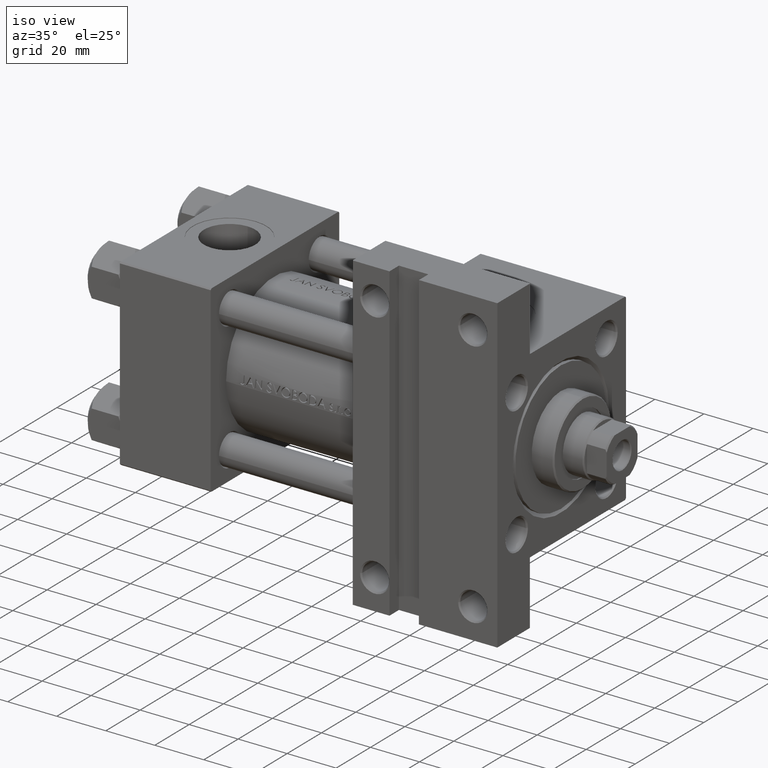
[diagram: clean part render]
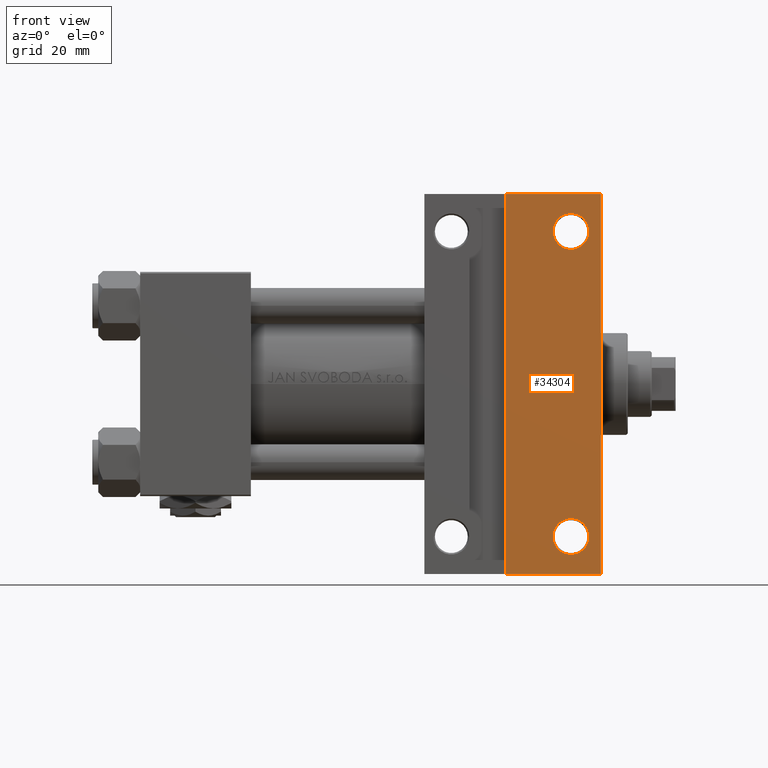
[diagram: tour spotlight — one face highlighted and labeled with its STEP entity id]
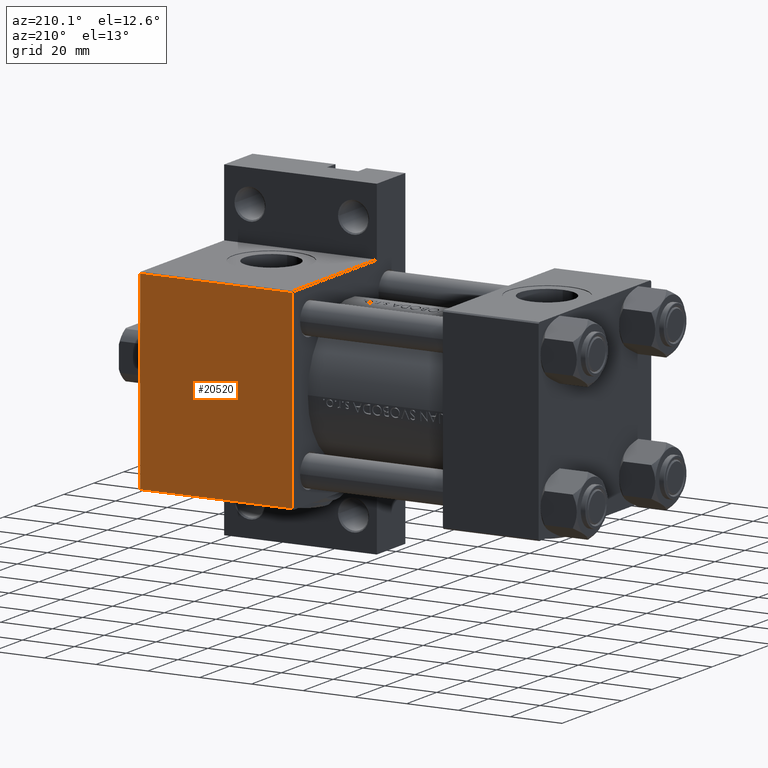
[diagram: tour spotlight — one face highlighted and labeled with its STEP entity id]
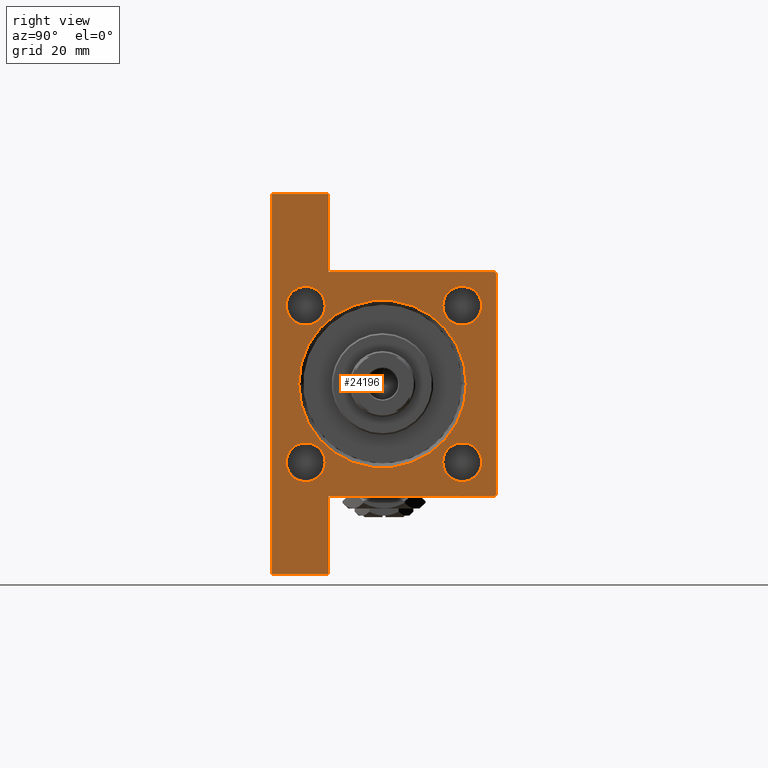
[diagram: tour spotlight — one face highlighted and labeled with its STEP entity id]
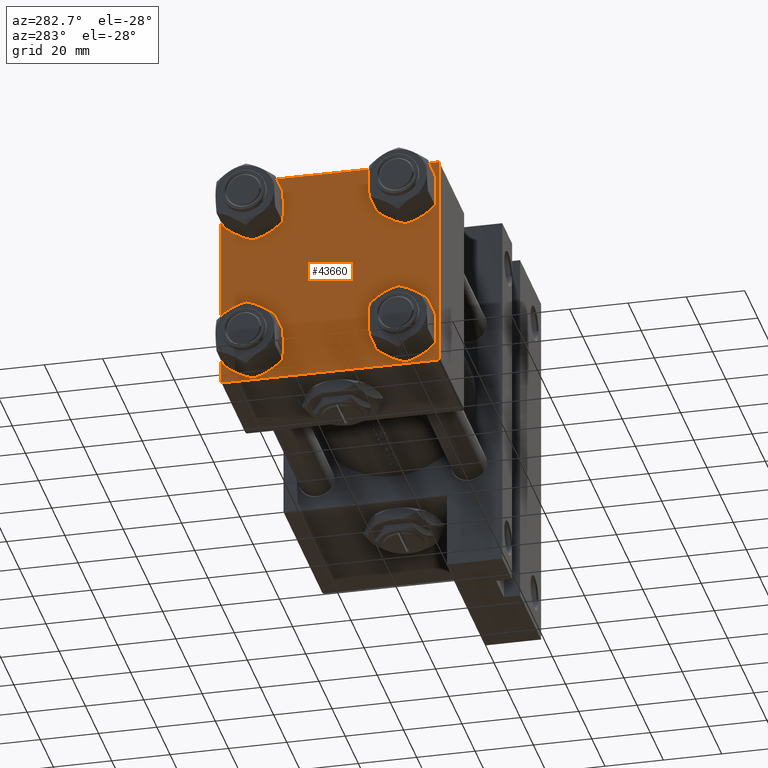
[diagram: tour spotlight — one face highlighted and labeled with its STEP entity id]
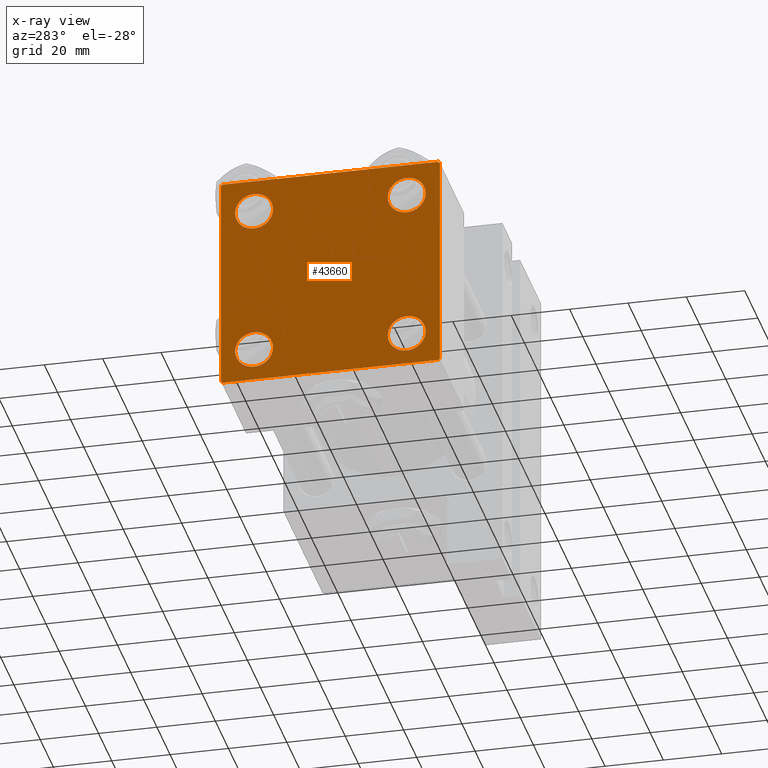
[diagram: x-ray of the same camera — body ghosted, this tour face saturated]
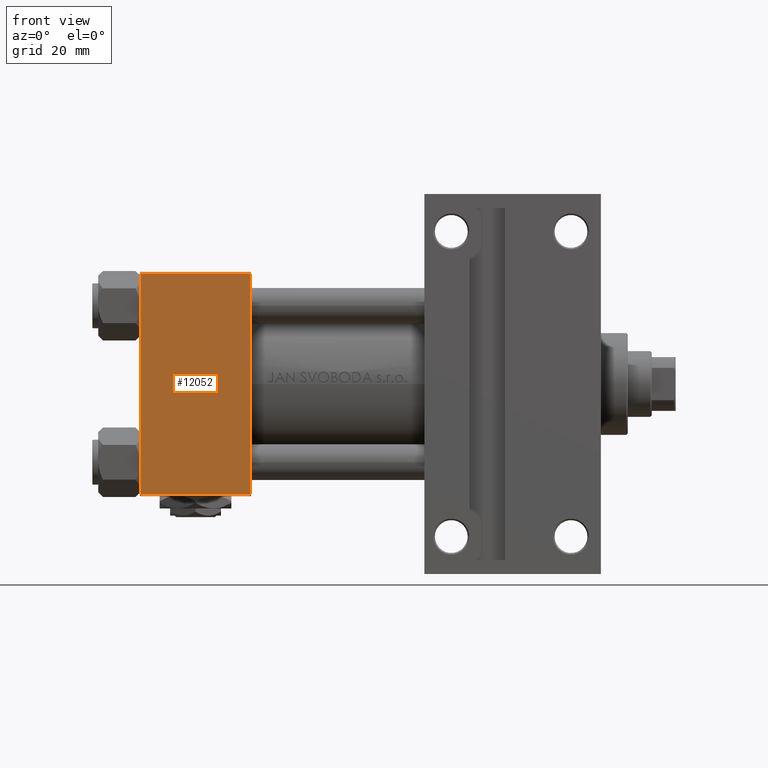
[diagram: tour spotlight — one face highlighted and labeled with its STEP entity id]
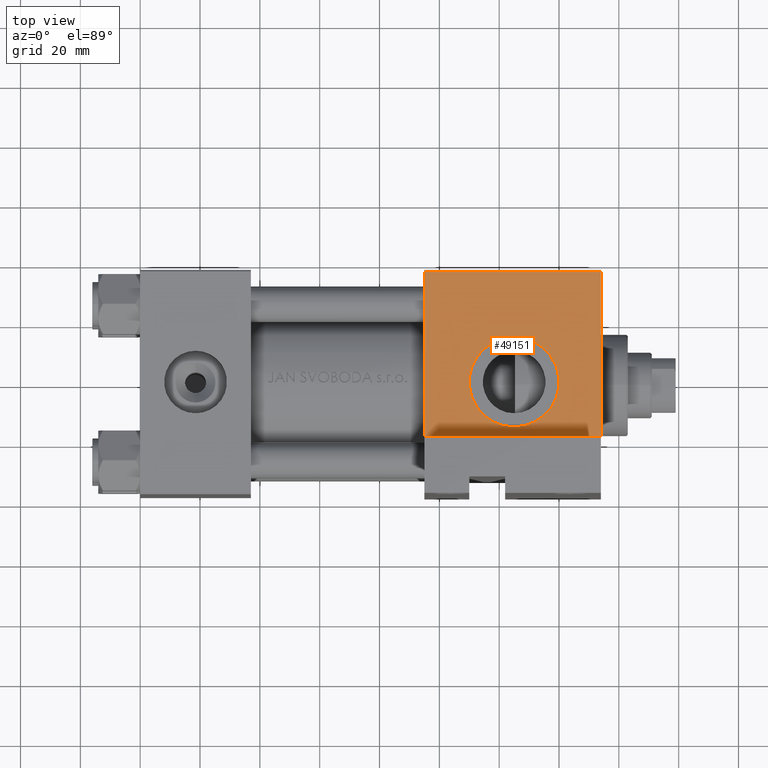
[diagram: tour spotlight — one face highlighted and labeled with its STEP entity id]
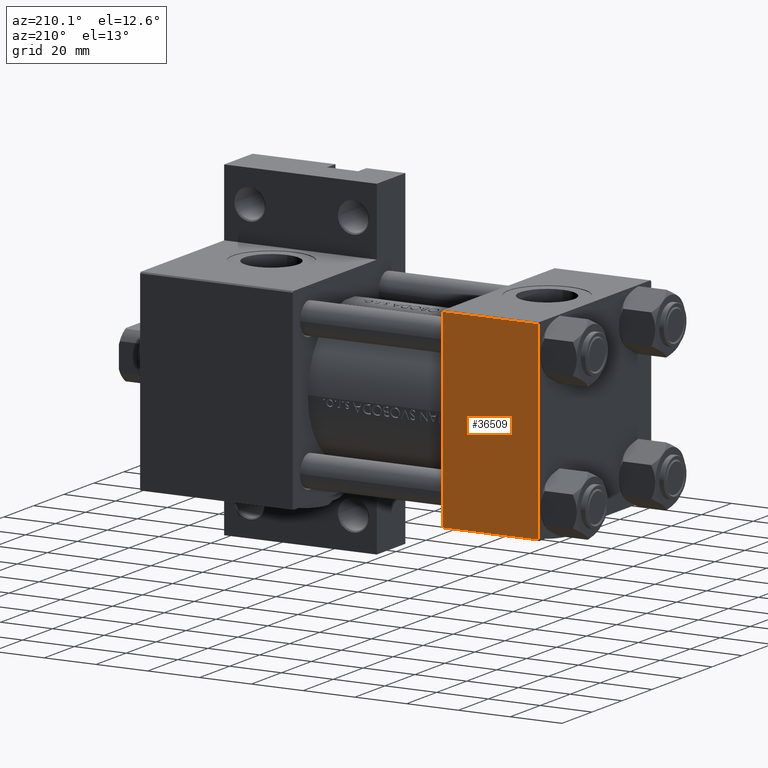
[diagram: tour spotlight — one face highlighted and labeled with its STEP entity id]
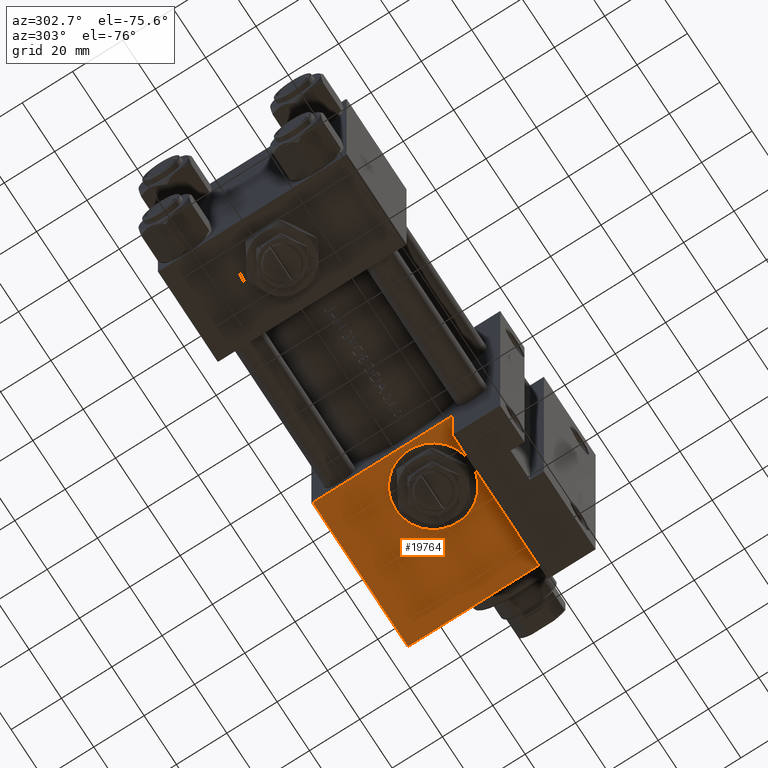
[diagram: tour spotlight — one face highlighted and labeled with its STEP entity id]
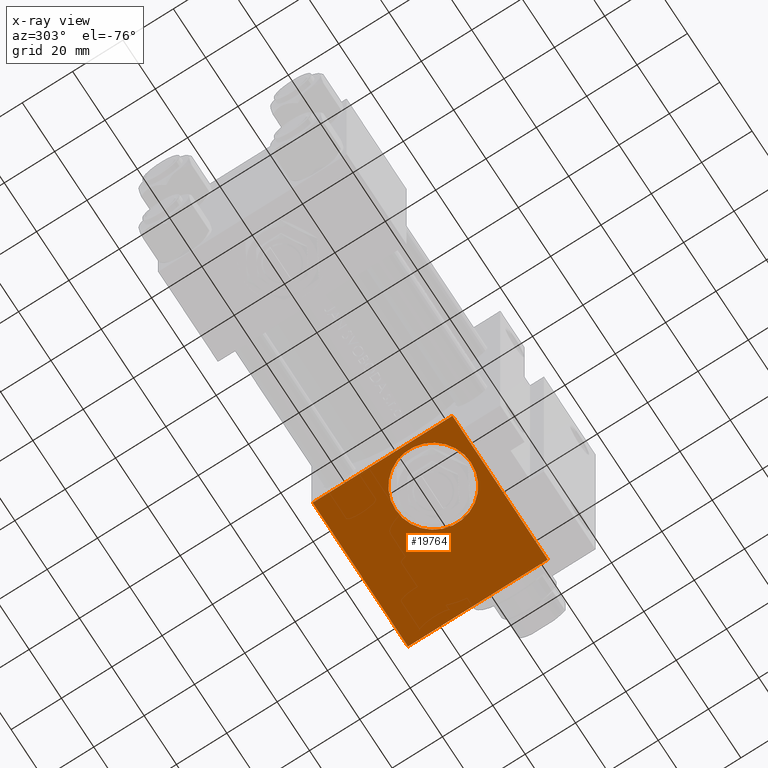
[diagram: x-ray of the same camera — body ghosted, this tour face saturated]
A machine part: a face-by-face anatomy tour. The part has 1199 B-rep faces; the first image is the clean iso view, then the 8 largest visible faces are spotlighted one at a time (largest first), each with its STEP entity span.

Face 1 — front view, entity #34304. In plain terms, the highlighted planar face has unit normal (0, -1, 0).
Definition (entity closure, byte-faithful):
#1232 = DIRECTION ( 'NONE',  ( -1.000000000000000000, 0.000000000000000000, 0.000000000000000000 ) ) ;
#1721 = DIRECTION ( 'NONE',  ( -0.000000000000000000, -0.000000000000000000, 1.000000000000000000 ) ) ;
#2720 = EDGE_CURVE ( 'NONE', #21198, #38297, #15262, .T. ) ;
#5327 = DIRECTION ( 'NONE',  ( -1.000000000000000000, 0.000000000000000000, 0.000000000000000000 ) ) ;
#7537 = LINE ( 'NONE', #30883, #21949 ) ;
#7682 = ORIENTED_EDGE ( 'NONE', *, *, #46597, .T. ) ;
#8260 = ORIENTED_EDGE ( 'NONE', *, *, #2720, .F. ) ;
#9049 = EDGE_LOOP ( 'NONE', ( #8260, #37685, #42379, #9970 ) ) ;
#9130 = ORIENTED_EDGE ( 'NONE', *, *, #37734, .T. ) ;
#9553 = CARTESIAN_POINT ( 'NONE',  ( 95.00000000000000000, 63.50000000000000000, -37.50000000000000000 ) ) ;
#9970 = ORIENTED_EDGE ( 'NONE', *, *, #46447, .T. ) ;
#10718 = CIRCLE ( 'NONE', #17172, 5.999499999999990507 ) ;
#11395 = CARTESIAN_POINT ( 'NONE',  ( 154.0000000000000000, 37.50000000000000000, -37.50000000000000000 ) ) ;
#12468 = EDGE_LOOP ( 'NONE', ( #9130, #21013 ) ) ;
#12498 = DIRECTION ( 'NONE',  ( -0.000000000000000000, -0.000000000000000000, 1.000000000000000000 ) ) ;
#12616 = DIRECTION ( 'NONE',  ( -0.000000000000000000, -0.000000000000000000, 1.000000000000000000 ) ) ;
#15262 = LINE ( 'NONE', #30569, #43435 ) ;
#15636 = EDGE_CURVE ( 'NONE', #44143, #32350, #18373, .T. ) ;
#16070 = CARTESIAN_POINT ( 'NONE',  ( 143.9999999999999716, -51.00000000000000000, -37.50000000000000000 ) ) ;
#16514 = DIRECTION ( 'NONE',  ( -1.000000000000000000, 0.000000000000000000, 0.000000000000000000 ) ) ;
#17172 = AXIS2_PLACEMENT_3D ( 'NONE', #47512, #12616, #5327 ) ;
#18373 = LINE ( 'NONE', #33672, #41583 ) ;
#19929 = CARTESIAN_POINT ( 'NONE',  ( 122.0000000000000000, 63.50000000000000000, -37.50000000000000000 ) ) ;
#21013 = ORIENTED_EDGE ( 'NONE', *, *, #43030, .T. ) ;
#21075 = AXIS2_PLACEMENT_3D ( 'NONE', #35607, #12498, #16514 ) ;
#21198 = VERTEX_POINT ( 'NONE', #19929 ) ;
#21589 = ORIENTED_EDGE ( 'NONE', *, *, #47303, .T. ) ;
#21949 = VECTOR ( 'NONE', #45696, 1000.000000000000000 ) ;
#23797 = CARTESIAN_POINT ( 'NONE',  ( 154.0000000000000000, 63.50000000000000000, -37.50000000000000000 ) ) ;
#24082 = DIRECTION ( 'NONE',  ( -0.000000000000000000, -0.000000000000000000, 1.000000000000000000 ) ) ;
#24619 = VERTEX_POINT ( 'NONE', #45909 ) ;
#24858 = DIRECTION ( 'NONE',  ( 1.000000000000000000, 0.000000000000000000, 0.000000000000000000 ) ) ;
#25120 = VERTEX_POINT ( 'NONE', #34815 ) ;
#26140 = DIRECTION ( 'NONE',  ( 0.000000000000000000, -1.000000000000000000, 0.000000000000000000 ) ) ;
#27670 = CARTESIAN_POINT ( 'NONE',  ( 153.9999999999999716, -63.50000000000002842, -37.50000000000000000 ) ) ;
#28943 = EDGE_CURVE ( 'NONE', #21198, #44143, #43962, .T. ) ;
#29804 = EDGE_LOOP ( 'NONE', ( #7682, #21589 ) ) ;
#30481 = DIRECTION ( 'NONE',  ( 0.000000000000000000, 0.000000000000000000, -1.000000000000000000 ) ) ;
#30569 = CARTESIAN_POINT ( 'NONE',  ( 122.0000000000000000, -63.50000000000000000, -37.50000000000000000 ) ) ;
#30883 = CARTESIAN_POINT ( 'NONE',  ( 94.99999999999998579, -63.50000000000000000, -37.50000000000000000 ) ) ;
#31371 = DIRECTION ( 'NONE',  ( -1.000000000000000000, 0.000000000000000000, 0.000000000000000000 ) ) ;
#31621 = CARTESIAN_POINT ( 'NONE',  ( 143.9999999999999716, 51.00000000000000000, -37.50000000000000000 ) ) ;
#32350 = VERTEX_POINT ( 'NONE', #27670 ) ;
#33267 = CIRCLE ( 'NONE', #38095, 5.999499999999990507 ) ;
#33672 = CARTESIAN_POINT ( 'NONE',  ( 154.0000000000000000, 37.50000000000000000, -37.50000000000000000 ) ) ;
#33994 = FACE_BOUND ( 'NONE', #29804, .T. ) ;
#34242 = FACE_BOUND ( 'NONE', #12468, .T. ) ;
#34304 = ADVANCED_FACE ( 'NONE', ( #45549, #33994, #34242 ), #45796, .T. ) ;
#34680 = CIRCLE ( 'NONE', #21075, 5.999499999999990507 ) ;
#34815 = CARTESIAN_POINT ( 'NONE',  ( 138.0004999999999598, -51.00000000000000000, -37.50000000000000000 ) ) ;
#35548 = CARTESIAN_POINT ( 'NONE',  ( 149.9994999999999550, 51.00000000000000000, -37.50000000000000000 ) ) ;
#35607 = CARTESIAN_POINT ( 'NONE',  ( 143.9999999999999716, 51.00000000000000000, -37.50000000000000000 ) ) ;
#37685 = ORIENTED_EDGE ( 'NONE', *, *, #28943, .T. ) ;
#37734 = EDGE_CURVE ( 'NONE', #24619, #48142, #33267, .T. ) ;
#38095 = AXIS2_PLACEMENT_3D ( 'NONE', #31621, #1721, #1232 ) ;
#38297 = VERTEX_POINT ( 'NONE', #46131 ) ;
#38363 = DIRECTION ( 'NONE',  ( -0.000000000000000000, -1.000000000000000000, -0.000000000000000000 ) ) ;
#40336 = VECTOR ( 'NONE', #24858, 1000.000000000000000 ) ;
#40430 = AXIS2_PLACEMENT_3D ( 'NONE', #16070, #24082, #31371 ) ;
#41583 = VECTOR ( 'NONE', #26140, 1000.000000000000000 ) ;
#42379 = ORIENTED_EDGE ( 'NONE', *, *, #15636, .T. ) ;
#42824 = CIRCLE ( 'NONE', #40430, 5.999499999999990507 ) ;
#43030 = EDGE_CURVE ( 'NONE', #48142, #24619, #34680, .T. ) ;
#43435 = VECTOR ( 'NONE', #38363, 1000.000000000000000 ) ;
#43962 = LINE ( 'NONE', #9553, #40336 ) ;
#44143 = VERTEX_POINT ( 'NONE', #23797 ) ;
#44775 = CARTESIAN_POINT ( 'NONE',  ( 149.9994999999999550, -51.00000000000000000, -37.50000000000000000 ) ) ;
#45549 = FACE_OUTER_BOUND ( 'NONE', #9049, .T. ) ;
#45696 = DIRECTION ( 'NONE',  ( -1.000000000000000000, 4.704334850106596780E-16, -0.000000000000000000 ) ) ;
#45796 = PLANE ( 'NONE',  #47608 ) ;
#45909 = CARTESIAN_POINT ( 'NONE',  ( 138.0004999999999598, 51.00000000000000000, -37.50000000000000000 ) ) ;
#46131 = CARTESIAN_POINT ( 'NONE',  ( 122.0000000000000000, -63.50000000000000000, -37.50000000000000000 ) ) ;
#46447 = EDGE_CURVE ( 'NONE', #32350, #38297, #7537, .T. ) ;
#46597 = EDGE_CURVE ( 'NONE', #25120, #46987, #42824, .T. ) ;
#46987 = VERTEX_POINT ( 'NONE', #44775 ) ;
#47303 = EDGE_CURVE ( 'NONE', #46987, #25120, #10718, .T. ) ;
#47512 = CARTESIAN_POINT ( 'NONE',  ( 143.9999999999999716, -51.00000000000000000, -37.50000000000000000 ) ) ;
#47608 = AXIS2_PLACEMENT_3D ( 'NONE', #11395, #30481, #49580 ) ;
#48142 = VERTEX_POINT ( 'NONE', #35548 ) ;
#49580 = DIRECTION ( 'NONE',  ( -1.000000000000000000, 0.000000000000000000, -0.000000000000000000 ) ) ;

Face 2 — auxiliary view, entity #20520. In plain terms, the highlighted planar face has unit normal (0, -1, -0).
Definition (entity closure, byte-faithful):
#1191 = CARTESIAN_POINT ( 'NONE',  ( 95.00000000000000000, 37.00000000000000000, 37.49999999999999289 ) ) ;
#3087 = CARTESIAN_POINT ( 'NONE',  ( 154.0000000000000000, 37.00000000000000000, 37.49999999999999289 ) ) ;
#3998 = DIRECTION ( 'NONE',  ( 1.000000000000000000, 0.000000000000000000, 0.000000000000000000 ) ) ;
#4305 = EDGE_CURVE ( 'NONE', #8794, #20065, #30125, .T. ) ;
#7449 = CARTESIAN_POINT ( 'NONE',  ( 154.0000000000000000, 37.50000000000000000, 37.49999999999999289 ) ) ;
#8794 = VERTEX_POINT ( 'NONE', #20383 ) ;
#9645 = VECTOR ( 'NONE', #40026, 1000.000000000000000 ) ;
#11613 = CARTESIAN_POINT ( 'NONE',  ( 95.00000000000000000, 37.00000000000000000, 37.49999999999999289 ) ) ;
#11643 = ORIENTED_EDGE ( 'NONE', *, *, #4305, .T. ) ;
#12698 = ORIENTED_EDGE ( 'NONE', *, *, #41391, .T. ) ;
#16476 = EDGE_LOOP ( 'NONE', ( #28887, #12698, #26582, #11643 ) ) ;
#17661 = LINE ( 'NONE', #36976, #9645 ) ;
#20065 = VERTEX_POINT ( 'NONE', #39054 ) ;
#20239 = VERTEX_POINT ( 'NONE', #3087 ) ;
#20383 = CARTESIAN_POINT ( 'NONE',  ( 95.00000000000000000, -36.99999999999997158, 37.49999999999997868 ) ) ;
#20520 = ADVANCED_FACE ( 'NONE', ( #48015 ), #40484, .F. ) ;
#22285 = EDGE_CURVE ( 'NONE', #33196, #8794, #17661, .T. ) ;
#22760 = DIRECTION ( 'NONE',  ( 0.000000000000000000, -1.000000000000000000, -1.850371707708594316E-16 ) ) ;
#23323 = VECTOR ( 'NONE', #22760, 1000.000000000000000 ) ;
#23894 = VECTOR ( 'NONE', #3998, 1000.000000000000000 ) ;
#24660 = DIRECTION ( 'NONE',  ( 0.000000000000000000, 1.000000000000000000, 1.850371707708594316E-16 ) ) ;
#24807 = AXIS2_PLACEMENT_3D ( 'NONE', #47519, #28434, #24660 ) ;
#25150 = EDGE_CURVE ( 'NONE', #20239, #20065, #34056, .T. ) ;
#26582 = ORIENTED_EDGE ( 'NONE', *, *, #22285, .T. ) ;
#27099 = CARTESIAN_POINT ( 'NONE',  ( 154.0000000000000000, -36.99999999999997158, 37.49999999999997868 ) ) ;
#28434 = DIRECTION ( 'NONE',  ( 0.000000000000000000, 1.850371707708594316E-16, -1.000000000000000000 ) ) ;
#28887 = ORIENTED_EDGE ( 'NONE', *, *, #25150, .F. ) ;
#30125 = LINE ( 'NONE', #27099, #23894 ) ;
#33013 = VECTOR ( 'NONE', #45261, 1000.000000000000000 ) ;
#33196 = VERTEX_POINT ( 'NONE', #1191 ) ;
#34056 = LINE ( 'NONE', #7449, #23323 ) ;
#36976 = CARTESIAN_POINT ( 'NONE',  ( 95.00000000000000000, 37.50000000000000000, 37.49999999999999289 ) ) ;
#39054 = CARTESIAN_POINT ( 'NONE',  ( 154.0000000000000000, -36.99999999999997158, 37.49999999999997868 ) ) ;
#40026 = DIRECTION ( 'NONE',  ( 0.000000000000000000, -1.000000000000000000, -1.850371707708594316E-16 ) ) ;
#40484 = PLANE ( 'NONE',  #24807 ) ;
#41391 = EDGE_CURVE ( 'NONE', #20239, #33196, #46013, .T. ) ;
#45261 = DIRECTION ( 'NONE',  ( -1.000000000000000000, 0.000000000000000000, 0.000000000000000000 ) ) ;
#46013 = LINE ( 'NONE', #11613, #33013 ) ;
#47519 = CARTESIAN_POINT ( 'NONE',  ( 154.0000000000000000, 37.50000000000000000, 37.49999999999999289 ) ) ;
#48015 = FACE_OUTER_BOUND ( 'NONE', #16476, .T. ) ;

Face 3 — right view, entity #24196. In plain terms, the highlighted planar face has unit normal (-1, 0, 0).
Definition (entity closure, byte-faithful):
#529 = DIRECTION ( 'NONE',  ( 0.000000000000000000, 0.000000000000000000, -1.000000000000000000 ) ) ;
#730 = ORIENTED_EDGE ( 'NONE', *, *, #20282, .T. ) ;
#744 = CARTESIAN_POINT ( 'NONE',  ( 154.0000000000000000, -26.15000000000000213, -32.65000000000001279 ) ) ;
#943 = DIRECTION ( 'NONE',  ( -0.000000000000000000, -0.7071067811865672237, -0.7071067811865279218 ) ) ;
#1607 = DIRECTION ( 'NONE',  ( 0.000000000000000000, 0.000000000000000000, 1.000000000000000000 ) ) ;
#1619 = FACE_BOUND ( 'NONE', #43322, .T. ) ;
#2103 = DIRECTION ( 'NONE',  ( -1.000000000000000000, -0.000000000000000000, 0.000000000000000000 ) ) ;
#2181 = CARTESIAN_POINT ( 'NONE',  ( 154.0000000000000000, -37.50000000000000711, -18.50000000000000355 ) ) ;
#2215 = ORIENTED_EDGE ( 'NONE', *, *, #39722, .T. ) ;
#2303 = VERTEX_POINT ( 'NONE', #744 ) ;
#2337 = CARTESIAN_POINT ( 'NONE',  ( 154.0000000000000000, 26.14999999999999858, 26.15000000000000213 ) ) ;
#2784 = CARTESIAN_POINT ( 'NONE',  ( 154.0000000000000000, 26.14999999999999858, -26.15000000000000213 ) ) ;
#3063 = CARTESIAN_POINT ( 'NONE',  ( 154.0000000000000000, 26.14999999999999858, 32.65000000000000568 ) ) ;
#3087 = CARTESIAN_POINT ( 'NONE',  ( 154.0000000000000000, 37.00000000000000000, 37.49999999999999289 ) ) ;
#3388 = VECTOR ( 'NONE', #943, 1000.000000000000000 ) ;
#3430 = CIRCLE ( 'NONE', #46757, 6.500000000000002665 ) ;
#3501 = DIRECTION ( 'NONE',  ( 0.000000000000000000, 0.000000000000000000, 1.000000000000000000 ) ) ;
#3693 = EDGE_CURVE ( 'NONE', #2303, #28753, #43918, .T. ) ;
#4074 = DIRECTION ( 'NONE',  ( -1.000000000000000000, -0.000000000000000000, 0.000000000000000000 ) ) ;
#5125 = VERTEX_POINT ( 'NONE', #15912 ) ;
#5738 = VERTEX_POINT ( 'NONE', #9186 ) ;
#5797 = AXIS2_PLACEMENT_3D ( 'NONE', #42423, #49464, #3501 ) ;
#5829 = AXIS2_PLACEMENT_3D ( 'NONE', #30505, #10414, #7165 ) ;
#6535 = CARTESIAN_POINT ( 'NONE',  ( 154.0000000000000000, -26.14999999999999147, 32.64999999999999858 ) ) ;
#6868 = LINE ( 'NONE', #48799, #46470 ) ;
#6970 = ORIENTED_EDGE ( 'NONE', *, *, #48176, .T. ) ;
#7069 = DIRECTION ( 'NONE',  ( 0.000000000000000000, 0.000000000000000000, 1.000000000000000000 ) ) ;
#7165 = DIRECTION ( 'NONE',  ( 0.000000000000000000, 0.000000000000000000, 1.000000000000000000 ) ) ;
#7228 = ORIENTED_EDGE ( 'NONE', *, *, #14154, .T. ) ;
#7339 = AXIS2_PLACEMENT_3D ( 'NONE', #26455, #19194, #38524 ) ;
#7449 = CARTESIAN_POINT ( 'NONE',  ( 154.0000000000000000, 37.50000000000000000, 37.49999999999999289 ) ) ;
#7872 = ORIENTED_EDGE ( 'NONE', *, *, #28794, .T. ) ;
#9186 = CARTESIAN_POINT ( 'NONE',  ( 154.0000000000000000, 63.50000000000000000, -18.50000000000000000 ) ) ;
#9975 = VECTOR ( 'NONE', #35046, 1000.000000000000114 ) ;
#10025 = ORIENTED_EDGE ( 'NONE', *, *, #28325, .T. ) ;
#10204 = ORIENTED_EDGE ( 'NONE', *, *, #32801, .T. ) ;
#10414 = DIRECTION ( 'NONE',  ( -1.000000000000000000, -0.000000000000000000, 0.000000000000000000 ) ) ;
#11042 = EDGE_CURVE ( 'NONE', #21677, #5125, #46010, .T. ) ;
#11831 = CARTESIAN_POINT ( 'NONE',  ( 154.0000000000000000, -37.50000000000000000, 36.99999999999997868 ) ) ;
#12077 = EDGE_CURVE ( 'NONE', #24615, #32530, #48675, .T. ) ;
#12094 = LINE ( 'NONE', #49524, #14757 ) ;
#12684 = FACE_BOUND ( 'NONE', #36066, .T. ) ;
#13832 = VECTOR ( 'NONE', #22314, 1000.000000000000000 ) ;
#14154 = EDGE_CURVE ( 'NONE', #38394, #42733, #39158, .T. ) ;
#14757 = VECTOR ( 'NONE', #529, 1000.000000000000000 ) ;
#15636 = EDGE_CURVE ( 'NONE', #44143, #32350, #18373, .T. ) ;
#15912 = CARTESIAN_POINT ( 'NONE',  ( 153.9999999999999716, 37.50000000000000711, -18.50000000000000000 ) ) ;
#16458 = DIRECTION ( 'NONE',  ( 0.000000000000000000, 0.000000000000000000, 1.000000000000000000 ) ) ;
#16688 = AXIS2_PLACEMENT_3D ( 'NONE', #38700, #22436, #35182 ) ;
#16935 = DIRECTION ( 'NONE',  ( -1.000000000000000000, -0.000000000000000000, 0.000000000000000000 ) ) ;
#16979 = ORIENTED_EDGE ( 'NONE', *, *, #28255, .T. ) ;
#17121 = EDGE_CURVE ( 'NONE', #5738, #5125, #34203, .T. ) ;
#17501 = DIRECTION ( 'NONE',  ( -1.000000000000000000, -0.000000000000000000, 0.000000000000000000 ) ) ;
#18273 = VECTOR ( 'NONE', #26163, 1000.000000000000000 ) ;
#18373 = LINE ( 'NONE', #33672, #41583 ) ;
#18864 = EDGE_CURVE ( 'NONE', #46439, #23521, #20746, .T. ) ;
#19194 = DIRECTION ( 'NONE',  ( -1.000000000000000000, -0.000000000000000000, 0.000000000000000000 ) ) ;
#20065 = VERTEX_POINT ( 'NONE', #39054 ) ;
#20239 = VERTEX_POINT ( 'NONE', #3087 ) ;
#20282 = EDGE_CURVE ( 'NONE', #45046, #20499, #6868, .T. ) ;
#20499 = VERTEX_POINT ( 'NONE', #35976 ) ;
#20613 = CARTESIAN_POINT ( 'NONE',  ( 154.0000000000000000, -26.14999999999999147, 26.14999999999999503 ) ) ;
#20746 = CIRCLE ( 'NONE', #48775, 6.500000000000002665 ) ;
#20856 = DIRECTION ( 'NONE',  ( 0.000000000000000000, 0.000000000000000000, 1.000000000000000000 ) ) ;
#21079 = CIRCLE ( 'NONE', #5829, 27.99999999999999645 ) ;
#21462 = VERTEX_POINT ( 'NONE', #11831 ) ;
#21473 = AXIS2_PLACEMENT_3D ( 'NONE', #48868, #17501, #45090 ) ;
#21677 = VERTEX_POINT ( 'NONE', #48941 ) ;
#21819 = CARTESIAN_POINT ( 'NONE',  ( 154.0000000000000000, 3.429011037612588881E-15, 27.49999999999999645 ) ) ;
#22314 = DIRECTION ( 'NONE',  ( 0.000000000000000000, -9.251858538542972814E-17, -1.000000000000000000 ) ) ;
#22436 = DIRECTION ( 'NONE',  ( -1.000000000000000000, -0.000000000000000000, 0.000000000000000000 ) ) ;
#22676 = AXIS2_PLACEMENT_3D ( 'NONE', #20613, #47712, #20856 ) ;
#22760 = DIRECTION ( 'NONE',  ( 0.000000000000000000, -1.000000000000000000, -1.850371707708594316E-16 ) ) ;
#22855 = VECTOR ( 'NONE', #44530, 1000.000000000000000 ) ;
#23323 = VECTOR ( 'NONE', #22760, 1000.000000000000000 ) ;
#23487 = LINE ( 'NONE', #38817, #9975 ) ;
#23521 = VERTEX_POINT ( 'NONE', #29384 ) ;
#23797 = CARTESIAN_POINT ( 'NONE',  ( 154.0000000000000000, 63.50000000000000000, -37.50000000000000000 ) ) ;
#24196 = ADVANCED_FACE ( 'NONE', ( #27737, #12684, #43311, #46844, #1619, #43568 ), #47581, .F. ) ;
#24615 = VERTEX_POINT ( 'NONE', #33847 ) ;
#25012 = EDGE_LOOP ( 'NONE', ( #45465, #6970, #45858, #10025, #16979, #730, #32509, #43218, #26561, #30847 ) ) ;
#25150 = EDGE_CURVE ( 'NONE', #20239, #20065, #34056, .T. ) ;
#25418 = EDGE_CURVE ( 'NONE', #28753, #2303, #28168, .T. ) ;
#26140 = DIRECTION ( 'NONE',  ( 0.000000000000000000, -1.000000000000000000, 0.000000000000000000 ) ) ;
#26163 = DIRECTION ( 'NONE',  ( -1.067522139062650671E-15, -1.000000000000000000, 0.000000000000000000 ) ) ;
#26317 = LINE ( 'NONE', #38383, #13832 ) ;
#26455 = CARTESIAN_POINT ( 'NONE',  ( 154.0000000000000000, -26.15000000000000213, -26.15000000000000213 ) ) ;
#26561 = ORIENTED_EDGE ( 'NONE', *, *, #37488, .F. ) ;
#27166 = DIRECTION ( 'NONE',  ( 0.000000000000000000, 0.000000000000000000, -1.000000000000000000 ) ) ;
#27298 = AXIS2_PLACEMENT_3D ( 'NONE', #44067, #2103, #16458 ) ;
#27670 = CARTESIAN_POINT ( 'NONE',  ( 153.9999999999999716, -63.50000000000002842, -37.50000000000000000 ) ) ;
#27737 = FACE_BOUND ( 'NONE', #44402, .T. ) ;
#28019 = ORIENTED_EDGE ( 'NONE', *, *, #18864, .T. ) ;
#28059 = LINE ( 'NONE', #43383, #3388 ) ;
#28112 = CARTESIAN_POINT ( 'NONE',  ( 154.0000000000000000, 26.14999999999999858, 19.65000000000000213 ) ) ;
#28135 = VERTEX_POINT ( 'NONE', #21819 ) ;
#28168 = CIRCLE ( 'NONE', #7339, 6.500000000000002665 ) ;
#28255 = EDGE_CURVE ( 'NONE', #21462, #45046, #26317, .T. ) ;
#28325 = EDGE_CURVE ( 'NONE', #20065, #21462, #28059, .T. ) ;
#28753 = VERTEX_POINT ( 'NONE', #49260 ) ;
#28794 = EDGE_CURVE ( 'NONE', #23521, #46439, #3430, .T. ) ;
#28833 = ORIENTED_EDGE ( 'NONE', *, *, #12077, .T. ) ;
#29264 = EDGE_LOOP ( 'NONE', ( #7872, #28019 ) ) ;
#29384 = CARTESIAN_POINT ( 'NONE',  ( 154.0000000000000000, 26.14999999999999858, -32.65000000000001279 ) ) ;
#30505 = CARTESIAN_POINT ( 'NONE',  ( 154.0000000000000000, 0.000000000000000000, -0.5000000000000004441 ) ) ;
#30584 = EDGE_CURVE ( 'NONE', #28135, #42910, #48277, .T. ) ;
#30847 = ORIENTED_EDGE ( 'NONE', *, *, #17121, .T. ) ;
#32229 = LINE ( 'NONE', #37664, #22855 ) ;
#32350 = VERTEX_POINT ( 'NONE', #27670 ) ;
#32509 = ORIENTED_EDGE ( 'NONE', *, *, #35611, .T. ) ;
#32530 = VERTEX_POINT ( 'NONE', #6535 ) ;
#32544 = EDGE_LOOP ( 'NONE', ( #33829, #35686 ) ) ;
#32801 = EDGE_CURVE ( 'NONE', #32530, #24615, #44346, .T. ) ;
#33533 = DIRECTION ( 'NONE',  ( 0.000000000000000000, 0.000000000000000000, 1.000000000000000000 ) ) ;
#33672 = CARTESIAN_POINT ( 'NONE',  ( 154.0000000000000000, 37.50000000000000000, -37.50000000000000000 ) ) ;
#33829 = ORIENTED_EDGE ( 'NONE', *, *, #3693, .T. ) ;
#33847 = CARTESIAN_POINT ( 'NONE',  ( 154.0000000000000000, -26.14999999999999147, 19.64999999999999503 ) ) ;
#34056 = LINE ( 'NONE', #7449, #23323 ) ;
#34203 = LINE ( 'NONE', #42246, #18273 ) ;
#35046 = DIRECTION ( 'NONE',  ( 0.000000000000000000, -0.7071067811865474617, 0.7071067811865474617 ) ) ;
#35169 = ORIENTED_EDGE ( 'NONE', *, *, #30584, .T. ) ;
#35182 = DIRECTION ( 'NONE',  ( 0.000000000000000000, 0.000000000000000000, 1.000000000000000000 ) ) ;
#35611 = EDGE_CURVE ( 'NONE', #20499, #32350, #12094, .T. ) ;
#35686 = ORIENTED_EDGE ( 'NONE', *, *, #25418, .T. ) ;
#35976 = CARTESIAN_POINT ( 'NONE',  ( 153.9999999999999716, -63.50000000000002842, -18.50000000000000000 ) ) ;
#36066 = EDGE_LOOP ( 'NONE', ( #28833, #10204 ) ) ;
#37488 = EDGE_CURVE ( 'NONE', #5738, #44143, #32229, .T. ) ;
#37664 = CARTESIAN_POINT ( 'NONE',  ( 154.0000000000000000, 63.50000000000000000, -18.50000000000000000 ) ) ;
#37810 = CARTESIAN_POINT ( 'NONE',  ( 154.0000000000000000, 26.14999999999999858, -26.15000000000000213 ) ) ;
#37929 = CARTESIAN_POINT ( 'NONE',  ( 154.0000000000000000, 26.14999999999999858, -19.64999999999999858 ) ) ;
#38233 = CARTESIAN_POINT ( 'NONE',  ( 154.0000000000000000, 37.50000000000000000, 37.49999999999999289 ) ) ;
#38383 = CARTESIAN_POINT ( 'NONE',  ( 154.0000000000000000, -37.50000000000000000, 37.49999999999997868 ) ) ;
#38394 = VERTEX_POINT ( 'NONE', #3063 ) ;
#38524 = DIRECTION ( 'NONE',  ( 0.000000000000000000, 0.000000000000000000, 1.000000000000000000 ) ) ;
#38700 = CARTESIAN_POINT ( 'NONE',  ( 154.0000000000000000, 26.14999999999999858, 26.15000000000000213 ) ) ;
#38714 = CIRCLE ( 'NONE', #41803, 6.500000000000002665 ) ;
#38817 = CARTESIAN_POINT ( 'NONE',  ( 154.0000000000000000, 37.00000000000000000, 37.49999999999999289 ) ) ;
#39054 = CARTESIAN_POINT ( 'NONE',  ( 154.0000000000000000, -36.99999999999997158, 37.49999999999997868 ) ) ;
#39158 = CIRCLE ( 'NONE', #16688, 6.500000000000002665 ) ;
#39567 = EDGE_CURVE ( 'NONE', #42910, #28135, #21079, .T. ) ;
#39722 = EDGE_CURVE ( 'NONE', #42733, #38394, #38714, .T. ) ;
#39873 = AXIS2_PLACEMENT_3D ( 'NONE', #46271, #4074, #42506 ) ;
#41460 = DIRECTION ( 'NONE',  ( -1.000000000000000000, -0.000000000000000000, 0.000000000000000000 ) ) ;
#41583 = VECTOR ( 'NONE', #26140, 1000.000000000000000 ) ;
#41803 = AXIS2_PLACEMENT_3D ( 'NONE', #2337, #16935, #1607 ) ;
#42078 = DIRECTION ( 'NONE',  ( -1.000000000000000000, -0.000000000000000000, 0.000000000000000000 ) ) ;
#42246 = CARTESIAN_POINT ( 'NONE',  ( 154.0000000000000000, 63.50000000000000000, -18.50000000000000000 ) ) ;
#42423 = CARTESIAN_POINT ( 'NONE',  ( 154.0000000000000000, 0.000000000000000000, -0.5000000000000004441 ) ) ;
#42506 = DIRECTION ( 'NONE',  ( 0.000000000000000000, 0.000000000000000000, 1.000000000000000000 ) ) ;
#42733 = VERTEX_POINT ( 'NONE', #28112 ) ;
#42910 = VERTEX_POINT ( 'NONE', #49680 ) ;
#43218 = ORIENTED_EDGE ( 'NONE', *, *, #15636, .F. ) ;
#43311 = FACE_BOUND ( 'NONE', #32544, .T. ) ;
#43322 = EDGE_LOOP ( 'NONE', ( #48201, #35169 ) ) ;
#43383 = CARTESIAN_POINT ( 'NONE',  ( 154.0000000000000000, -37.50000000000000000, 36.99999999999997868 ) ) ;
#43568 = FACE_OUTER_BOUND ( 'NONE', #25012, .T. ) ;
#43918 = CIRCLE ( 'NONE', #21473, 6.500000000000002665 ) ;
#44067 = CARTESIAN_POINT ( 'NONE',  ( 154.0000000000000000, 0.000000000000000000, 0.000000000000000000 ) ) ;
#44143 = VERTEX_POINT ( 'NONE', #23797 ) ;
#44346 = CIRCLE ( 'NONE', #22676, 6.500000000000002665 ) ;
#44402 = EDGE_LOOP ( 'NONE', ( #2215, #7228 ) ) ;
#44530 = DIRECTION ( 'NONE',  ( 0.000000000000000000, 0.000000000000000000, -1.000000000000000000 ) ) ;
#45046 = VERTEX_POINT ( 'NONE', #2181 ) ;
#45090 = DIRECTION ( 'NONE',  ( 0.000000000000000000, 0.000000000000000000, 1.000000000000000000 ) ) ;
#45465 = ORIENTED_EDGE ( 'NONE', *, *, #11042, .F. ) ;
#45858 = ORIENTED_EDGE ( 'NONE', *, *, #25150, .T. ) ;
#46010 = LINE ( 'NONE', #38233, #49446 ) ;
#46271 = CARTESIAN_POINT ( 'NONE',  ( 154.0000000000000000, -26.14999999999999147, 26.14999999999999503 ) ) ;
#46439 = VERTEX_POINT ( 'NONE', #37929 ) ;
#46470 = VECTOR ( 'NONE', #49558, 1000.000000000000000 ) ;
#46757 = AXIS2_PLACEMENT_3D ( 'NONE', #2784, #41460, #7069 ) ;
#46844 = FACE_BOUND ( 'NONE', #29264, .T. ) ;
#47581 = PLANE ( 'NONE',  #27298 ) ;
#47712 = DIRECTION ( 'NONE',  ( -1.000000000000000000, -0.000000000000000000, 0.000000000000000000 ) ) ;
#48176 = EDGE_CURVE ( 'NONE', #21677, #20239, #23487, .T. ) ;
#48201 = ORIENTED_EDGE ( 'NONE', *, *, #39567, .T. ) ;
#48277 = CIRCLE ( 'NONE', #5797, 27.99999999999999645 ) ;
#48675 = CIRCLE ( 'NONE', #39873, 6.500000000000002665 ) ;
#48775 = AXIS2_PLACEMENT_3D ( 'NONE', #37810, #42078, #33533 ) ;
#48799 = CARTESIAN_POINT ( 'NONE',  ( 153.9999999999999716, -63.50000000000002842, -18.50000000000000000 ) ) ;
#48868 = CARTESIAN_POINT ( 'NONE',  ( 154.0000000000000000, -26.15000000000000213, -26.15000000000000213 ) ) ;
#48941 = CARTESIAN_POINT ( 'NONE',  ( 154.0000000000000000, 37.50000000000000000, 36.99999999999999289 ) ) ;
#49260 = CARTESIAN_POINT ( 'NONE',  ( 154.0000000000000000, -26.15000000000000213, -19.64999999999999858 ) ) ;
#49446 = VECTOR ( 'NONE', #27166, 1000.000000000000000 ) ;
#49464 = DIRECTION ( 'NONE',  ( -1.000000000000000000, -0.000000000000000000, 0.000000000000000000 ) ) ;
#49524 = CARTESIAN_POINT ( 'NONE',  ( 153.9999999999999716, -63.50000000000002842, -18.50000000000000000 ) ) ;
#49558 = DIRECTION ( 'NONE',  ( -0.000000000000000000, -1.000000000000000000, -0.000000000000000000 ) ) ;
#49680 = CARTESIAN_POINT ( 'NONE',  ( 154.0000000000000000, 0.000000000000000000, -28.49999999999999645 ) ) ;

Face 4 — auxiliary view, entity #43660. An x-ray twin of the same camera follows (body ghosted, this face saturated) — the face is partly hidden behind the body. In plain terms, the highlighted planar face has unit normal (-1, 0, -0).
Definition (entity closure, byte-faithful):
#124 = ORIENTED_EDGE ( 'NONE', *, *, #28364, .T. ) ;
#403 = CIRCLE ( 'NONE', #18836, 6.500000000000015987 ) ;
#788 = VERTEX_POINT ( 'NONE', #21994 ) ;
#1301 = CARTESIAN_POINT ( 'NONE',  ( 0.000000000000000000, 26.14999999999999858, -32.65000000000001990 ) ) ;
#2379 = EDGE_CURVE ( 'NONE', #29059, #33997, #11459, .T. ) ;
#2436 = CARTESIAN_POINT ( 'NONE',  ( 0.000000000000000000, 37.49999999999999289, 37.50000000000000000 ) ) ;
#2765 = CARTESIAN_POINT ( 'NONE',  ( 0.000000000000000000, -26.14999999999999147, -26.15000000000000924 ) ) ;
#2778 = ORIENTED_EDGE ( 'NONE', *, *, #39480, .T. ) ;
#2970 = CARTESIAN_POINT ( 'NONE',  ( 0.000000000000000000, -26.14999999999999147, -26.15000000000000924 ) ) ;
#3415 = CIRCLE ( 'NONE', #20292, 6.500000000000023093 ) ;
#3627 = ORIENTED_EDGE ( 'NONE', *, *, #40229, .T. ) ;
#3731 = ORIENTED_EDGE ( 'NONE', *, *, #47357, .T. ) ;
#4078 = CARTESIAN_POINT ( 'NONE',  ( 0.000000000000000000, 0.000000000000000000, 0.000000000000000000 ) ) ;
#4335 = FACE_BOUND ( 'NONE', #27826, .T. ) ;
#4823 = DIRECTION ( 'NONE',  ( -0.000000000000000000, 0.000000000000000000, 1.000000000000000000 ) ) ;
#5006 = CARTESIAN_POINT ( 'NONE',  ( 0.000000000000000000, -26.14999999999999147, 26.15000000000000924 ) ) ;
#5230 = VERTEX_POINT ( 'NONE', #39012 ) ;
#5248 = CARTESIAN_POINT ( 'NONE',  ( 0.000000000000000000, 36.99999999999997868, -37.50000000000000000 ) ) ;
#5328 = EDGE_CURVE ( 'NONE', #788, #26449, #29171, .T. ) ;
#5475 = VECTOR ( 'NONE', #48147, 1000.000000000000000 ) ;
#5703 = DIRECTION ( 'NONE',  ( 0.000000000000000000, 0.000000000000000000, 1.000000000000000000 ) ) ;
#5972 = LINE ( 'NONE', #32828, #5475 ) ;
#6350 = DIRECTION ( 'NONE',  ( -0.000000000000000000, -0.7071067811865474617, -0.7071067811865474617 ) ) ;
#6356 = ORIENTED_EDGE ( 'NONE', *, *, #2379, .T. ) ;
#6384 = ORIENTED_EDGE ( 'NONE', *, *, #26965, .F. ) ;
#6569 = CARTESIAN_POINT ( 'NONE',  ( 0.000000000000000000, -26.14999999999999147, -19.64999999999999503 ) ) ;
#6827 = EDGE_CURVE ( 'NONE', #37752, #788, #5972, .T. ) ;
#8464 = DIRECTION ( 'NONE',  ( 1.000000000000000000, -0.000000000000000000, 0.000000000000000000 ) ) ;
#8471 = ORIENTED_EDGE ( 'NONE', *, *, #28501, .F. ) ;
#8619 = VERTEX_POINT ( 'NONE', #6569 ) ;
#9174 = ORIENTED_EDGE ( 'NONE', *, *, #46123, .T. ) ;
#9609 = CARTESIAN_POINT ( 'NONE',  ( 0.000000000000000000, -37.24999999999975842, -37.25000000000027001 ) ) ;
#10298 = VECTOR ( 'NONE', #44504, 1000.000000000000000 ) ;
#10631 = VERTEX_POINT ( 'NONE', #11167 ) ;
#11167 = CARTESIAN_POINT ( 'NONE',  ( 0.000000000000000000, 36.99999999999999289, 37.50000000000000000 ) ) ;
#11382 = DIRECTION ( 'NONE',  ( 0.000000000000000000, 9.251858538542971581E-17, -1.000000000000000000 ) ) ;
#11459 = CIRCLE ( 'NONE', #24291, 6.500000000000023093 ) ;
#12163 = CARTESIAN_POINT ( 'NONE',  ( 0.000000000000000000, 37.49999999999999289, 37.50000000000000000 ) ) ;
#12380 = PLANE ( 'NONE',  #43503 ) ;
#12495 = CARTESIAN_POINT ( 'NONE',  ( 0.000000000000000000, -37.00000000000000711, 37.49999999999999289 ) ) ;
#12877 = DIRECTION ( 'NONE',  ( 0.000000000000000000, 0.000000000000000000, 1.000000000000000000 ) ) ;
#13262 = CARTESIAN_POINT ( 'NONE',  ( 0.000000000000000000, -26.14999999999999147, 32.65000000000003411 ) ) ;
#13746 = AXIS2_PLACEMENT_3D ( 'NONE', #24016, #8464, #19523 ) ;
#13870 = VERTEX_POINT ( 'NONE', #27801 ) ;
#13897 = LINE ( 'NONE', #25428, #18727 ) ;
#14350 = ORIENTED_EDGE ( 'NONE', *, *, #6827, .T. ) ;
#16757 = ORIENTED_EDGE ( 'NONE', *, *, #21300, .T. ) ;
#17044 = VECTOR ( 'NONE', #11382, 1000.000000000000000 ) ;
#18299 = DIRECTION ( 'NONE',  ( 1.000000000000000000, -0.000000000000000000, 0.000000000000000000 ) ) ;
#18719 = ORIENTED_EDGE ( 'NONE', *, *, #37466, .T. ) ;
#18727 = VECTOR ( 'NONE', #6350, 1000.000000000000114 ) ;
#18836 = AXIS2_PLACEMENT_3D ( 'NONE', #2970, #18299, #40899 ) ;
#19523 = DIRECTION ( 'NONE',  ( 0.000000000000000000, 0.000000000000000000, 1.000000000000000000 ) ) ;
#19663 = FACE_OUTER_BOUND ( 'NONE', #21874, .T. ) ;
#19818 = DIRECTION ( 'NONE',  ( -0.000000000000000000, 0.7071067811865474617, 0.7071067811865474617 ) ) ;
#19959 = LINE ( 'NONE', #12163, #30889 ) ;
#20292 = AXIS2_PLACEMENT_3D ( 'NONE', #25077, #48419, #29568 ) ;
#20848 = CIRCLE ( 'NONE', #44099, 6.500000000000023093 ) ;
#21148 = VECTOR ( 'NONE', #38386, 1000.000000000000114 ) ;
#21300 = EDGE_CURVE ( 'NONE', #26486, #36319, #20848, .T. ) ;
#21874 = EDGE_LOOP ( 'NONE', ( #18719, #9174, #14350, #48111, #8471, #49589, #6384, #46920 ) ) ;
#21948 = DIRECTION ( 'NONE',  ( 1.000000000000000000, -0.000000000000000000, 0.000000000000000000 ) ) ;
#21994 = CARTESIAN_POINT ( 'NONE',  ( 0.000000000000000000, -37.00000000000002132, -37.50000000000000711 ) ) ;
#23418 = FACE_BOUND ( 'NONE', #30606, .T. ) ;
#23913 = DIRECTION ( 'NONE',  ( -1.000000000000000000, 0.000000000000000000, -0.000000000000000000 ) ) ;
#24016 = CARTESIAN_POINT ( 'NONE',  ( 0.000000000000000000, 26.14999999999999858, -26.15000000000000213 ) ) ;
#24201 = DIRECTION ( 'NONE',  ( 0.000000000000000000, 0.000000000000000000, -1.000000000000000000 ) ) ;
#24255 = VERTEX_POINT ( 'NONE', #35790 ) ;
#24291 = AXIS2_PLACEMENT_3D ( 'NONE', #5006, #43935, #28101 ) ;
#24666 = ORIENTED_EDGE ( 'NONE', *, *, #40106, .T. ) ;
#24670 = CARTESIAN_POINT ( 'NONE',  ( 0.000000000000000000, 26.14999999999999858, 26.15000000000000213 ) ) ;
#25077 = CARTESIAN_POINT ( 'NONE',  ( 0.000000000000000000, 26.14999999999999858, 26.15000000000000213 ) ) ;
#25205 = CIRCLE ( 'NONE', #43691, 6.500000000000015987 ) ;
#25428 = CARTESIAN_POINT ( 'NONE',  ( 0.000000000000000000, 37.24999999999998579, -37.24999999999998579 ) ) ;
#26154 = CARTESIAN_POINT ( 'NONE',  ( 0.000000000000000000, 26.14999999999999858, 32.65000000000002700 ) ) ;
#26449 = VERTEX_POINT ( 'NONE', #49017 ) ;
#26486 = VERTEX_POINT ( 'NONE', #26154 ) ;
#26632 = CARTESIAN_POINT ( 'NONE',  ( 0.000000000000000000, -37.50000000000000711, 36.99999999999999289 ) ) ;
#26648 = AXIS2_PLACEMENT_3D ( 'NONE', #33486, #21948, #5703 ) ;
#26965 = EDGE_CURVE ( 'NONE', #10631, #47855, #37099, .T. ) ;
#27081 = LINE ( 'NONE', #45673, #37848 ) ;
#27801 = CARTESIAN_POINT ( 'NONE',  ( 0.000000000000000000, 26.14999999999999858, -19.64999999999998792 ) ) ;
#27826 = EDGE_LOOP ( 'NONE', ( #16757, #24666 ) ) ;
#28101 = DIRECTION ( 'NONE',  ( 0.000000000000000000, 0.000000000000000000, 1.000000000000000000 ) ) ;
#28183 = DIRECTION ( 'NONE',  ( 1.000000000000000000, -0.000000000000000000, 0.000000000000000000 ) ) ;
#28364 = EDGE_CURVE ( 'NONE', #33997, #29059, #48317, .T. ) ;
#28501 = EDGE_CURVE ( 'NONE', #28825, #26449, #35246, .T. ) ;
#28825 = VERTEX_POINT ( 'NONE', #26632 ) ;
#29059 = VERTEX_POINT ( 'NONE', #33612 ) ;
#29158 = CARTESIAN_POINT ( 'NONE',  ( 0.000000000000000000, 37.49999999999999289, -36.99999999999998579 ) ) ;
#29171 = LINE ( 'NONE', #9609, #10298 ) ;
#29568 = DIRECTION ( 'NONE',  ( 0.000000000000000000, 0.000000000000000000, 1.000000000000000000 ) ) ;
#29800 = VECTOR ( 'NONE', #32598, 1000.000000000000000 ) ;
#29929 = CARTESIAN_POINT ( 'NONE',  ( 0.000000000000000000, 26.14999999999999858, 19.64999999999998437 ) ) ;
#29932 = EDGE_CURVE ( 'NONE', #28825, #47855, #27081, .T. ) ;
#30606 = EDGE_LOOP ( 'NONE', ( #124, #6356 ) ) ;
#30824 = DIRECTION ( 'NONE',  ( 1.000000000000000000, -0.000000000000000000, 0.000000000000000000 ) ) ;
#30889 = VECTOR ( 'NONE', #24201, 1000.000000000000000 ) ;
#31032 = EDGE_LOOP ( 'NONE', ( #2778, #3627 ) ) ;
#32598 = DIRECTION ( 'NONE',  ( 0.000000000000000000, -1.000000000000000000, -9.251858538542971581E-17 ) ) ;
#32828 = CARTESIAN_POINT ( 'NONE',  ( 0.000000000000000000, 37.49999999999999289, -37.50000000000000000 ) ) ;
#32917 = DIRECTION ( 'NONE',  ( 1.000000000000000000, -0.000000000000000000, 0.000000000000000000 ) ) ;
#33486 = CARTESIAN_POINT ( 'NONE',  ( 0.000000000000000000, -26.14999999999999147, 26.15000000000000924 ) ) ;
#33612 = CARTESIAN_POINT ( 'NONE',  ( 0.000000000000000000, -26.14999999999999147, 19.64999999999999147 ) ) ;
#33650 = DIRECTION ( 'NONE',  ( 0.000000000000000000, 0.000000000000000000, 1.000000000000000000 ) ) ;
#33997 = VERTEX_POINT ( 'NONE', #13262 ) ;
#35246 = LINE ( 'NONE', #45784, #17044 ) ;
#35370 = CARTESIAN_POINT ( 'NONE',  ( 0.000000000000000000, 37.24999999999999289, 37.24999999999999289 ) ) ;
#35790 = CARTESIAN_POINT ( 'NONE',  ( 0.000000000000000000, -26.14999999999999147, -32.65000000000002700 ) ) ;
#36319 = VERTEX_POINT ( 'NONE', #29929 ) ;
#37099 = LINE ( 'NONE', #2436, #29800 ) ;
#37147 = EDGE_LOOP ( 'NONE', ( #38806, #3731 ) ) ;
#37466 = EDGE_CURVE ( 'NONE', #5230, #43721, #19959, .T. ) ;
#37752 = VERTEX_POINT ( 'NONE', #5248 ) ;
#37848 = VECTOR ( 'NONE', #19818, 1000.000000000000114 ) ;
#38386 = DIRECTION ( 'NONE',  ( 0.000000000000000000, 0.7071067811865474617, -0.7071067811865474617 ) ) ;
#38755 = FACE_BOUND ( 'NONE', #37147, .T. ) ;
#38806 = ORIENTED_EDGE ( 'NONE', *, *, #48548, .T. ) ;
#39012 = CARTESIAN_POINT ( 'NONE',  ( 0.000000000000000000, 37.49999999999999289, 37.00000000000000000 ) ) ;
#39243 = FACE_BOUND ( 'NONE', #31032, .T. ) ;
#39480 = EDGE_CURVE ( 'NONE', #13870, #46355, #44342, .T. ) ;
#40106 = EDGE_CURVE ( 'NONE', #36319, #26486, #3415, .T. ) ;
#40229 = EDGE_CURVE ( 'NONE', #46355, #13870, #44262, .T. ) ;
#40899 = DIRECTION ( 'NONE',  ( 0.000000000000000000, 0.000000000000000000, 1.000000000000000000 ) ) ;
#42647 = LINE ( 'NONE', #35370, #21148 ) ;
#43503 = AXIS2_PLACEMENT_3D ( 'NONE', #4078, #23913, #4823 ) ;
#43660 = ADVANCED_FACE ( 'NONE', ( #23418, #38755, #39243, #4335, #19663 ), #12380, .T. ) ;
#43691 = AXIS2_PLACEMENT_3D ( 'NONE', #2765, #32917, #33650 ) ;
#43721 = VERTEX_POINT ( 'NONE', #29158 ) ;
#43935 = DIRECTION ( 'NONE',  ( 1.000000000000000000, -0.000000000000000000, 0.000000000000000000 ) ) ;
#44099 = AXIS2_PLACEMENT_3D ( 'NONE', #24670, #28183, #12877 ) ;
#44262 = CIRCLE ( 'NONE', #49044, 6.500000000000015987 ) ;
#44342 = CIRCLE ( 'NONE', #13746, 6.500000000000015987 ) ;
#44504 = DIRECTION ( 'NONE',  ( 0.000000000000000000, -0.7071067811865524577, 0.7071067811865426878 ) ) ;
#44922 = EDGE_CURVE ( 'NONE', #10631, #5230, #42647, .T. ) ;
#45638 = DIRECTION ( 'NONE',  ( 0.000000000000000000, 0.000000000000000000, 1.000000000000000000 ) ) ;
#45673 = CARTESIAN_POINT ( 'NONE',  ( -0.000000000000000000, -37.25000000000000000, 37.25000000000000000 ) ) ;
#45784 = CARTESIAN_POINT ( 'NONE',  ( 0.000000000000000000, -37.50000000000000711, 37.49999999999999289 ) ) ;
#46123 = EDGE_CURVE ( 'NONE', #43721, #37752, #13897, .T. ) ;
#46355 = VERTEX_POINT ( 'NONE', #1301 ) ;
#46920 = ORIENTED_EDGE ( 'NONE', *, *, #44922, .T. ) ;
#47357 = EDGE_CURVE ( 'NONE', #24255, #8619, #25205, .T. ) ;
#47855 = VERTEX_POINT ( 'NONE', #12495 ) ;
#48111 = ORIENTED_EDGE ( 'NONE', *, *, #5328, .T. ) ;
#48147 = DIRECTION ( 'NONE',  ( 0.000000000000000000, -1.000000000000000000, -9.251858538542972814E-17 ) ) ;
#48317 = CIRCLE ( 'NONE', #26648, 6.500000000000023093 ) ;
#48419 = DIRECTION ( 'NONE',  ( 1.000000000000000000, -0.000000000000000000, 0.000000000000000000 ) ) ;
#48548 = EDGE_CURVE ( 'NONE', #8619, #24255, #403, .T. ) ;
#48915 = CARTESIAN_POINT ( 'NONE',  ( 0.000000000000000000, 26.14999999999999858, -26.15000000000000213 ) ) ;
#49017 = CARTESIAN_POINT ( 'NONE',  ( 0.000000000000000000, -37.50000000000000000, -37.00000000000003553 ) ) ;
#49044 = AXIS2_PLACEMENT_3D ( 'NONE', #48915, #30824, #45638 ) ;
#49589 = ORIENTED_EDGE ( 'NONE', *, *, #29932, .T. ) ;

Face 5 — front view, entity #12052. In plain terms, the highlighted planar face has unit normal (0, -1, -0).
Definition (entity closure, byte-faithful):
#788 = VERTEX_POINT ( 'NONE', #21994 ) ;
#1032 = CARTESIAN_POINT ( 'NONE',  ( 37.00000000000000000, 37.49999999999999289, -37.50000000000000000 ) ) ;
#1803 = LINE ( 'NONE', #43762, #10575 ) ;
#3581 = CARTESIAN_POINT ( 'NONE',  ( 37.00000000000000000, 37.49999999999999289, -37.50000000000000000 ) ) ;
#4591 = AXIS2_PLACEMENT_3D ( 'NONE', #3581, #45518, #49551 ) ;
#5248 = CARTESIAN_POINT ( 'NONE',  ( 0.000000000000000000, 36.99999999999997868, -37.50000000000000000 ) ) ;
#5475 = VECTOR ( 'NONE', #48147, 1000.000000000000000 ) ;
#5972 = LINE ( 'NONE', #32828, #5475 ) ;
#6827 = EDGE_CURVE ( 'NONE', #37752, #788, #5972, .T. ) ;
#9561 = EDGE_CURVE ( 'NONE', #45537, #35253, #13336, .T. ) ;
#9842 = ORIENTED_EDGE ( 'NONE', *, *, #6827, .F. ) ;
#10575 = VECTOR ( 'NONE', #17142, 1000.000000000000000 ) ;
#11257 = ORIENTED_EDGE ( 'NONE', *, *, #42553, .T. ) ;
#12009 = CARTESIAN_POINT ( 'NONE',  ( 0.000000000000000000, -37.00000000000002132, -37.50000000000000711 ) ) ;
#12052 = ADVANCED_FACE ( 'NONE', ( #14900 ), #37739, .T. ) ;
#13336 = LINE ( 'NONE', #1032, #28405 ) ;
#14900 = FACE_OUTER_BOUND ( 'NONE', #35826, .T. ) ;
#17016 = ORIENTED_EDGE ( 'NONE', *, *, #33119, .T. ) ;
#17142 = DIRECTION ( 'NONE',  ( 1.000000000000000000, 0.000000000000000000, 0.000000000000000000 ) ) ;
#19687 = CARTESIAN_POINT ( 'NONE',  ( 37.00000000000000000, 36.99999999999997868, -37.50000000000000000 ) ) ;
#21994 = CARTESIAN_POINT ( 'NONE',  ( 0.000000000000000000, -37.00000000000002132, -37.50000000000000711 ) ) ;
#22806 = DIRECTION ( 'NONE',  ( -1.000000000000000000, 0.000000000000000000, 0.000000000000000000 ) ) ;
#23554 = LINE ( 'NONE', #12009, #28314 ) ;
#28314 = VECTOR ( 'NONE', #22806, 1000.000000000000000 ) ;
#28405 = VECTOR ( 'NONE', #47243, 1000.000000000000000 ) ;
#32828 = CARTESIAN_POINT ( 'NONE',  ( 0.000000000000000000, 37.49999999999999289, -37.50000000000000000 ) ) ;
#33119 = EDGE_CURVE ( 'NONE', #35253, #788, #23554, .T. ) ;
#33169 = CARTESIAN_POINT ( 'NONE',  ( 37.00000000000000000, -37.00000000000002132, -37.50000000000000711 ) ) ;
#35253 = VERTEX_POINT ( 'NONE', #33169 ) ;
#35826 = EDGE_LOOP ( 'NONE', ( #9842, #11257, #41738, #17016 ) ) ;
#37739 = PLANE ( 'NONE',  #4591 ) ;
#37752 = VERTEX_POINT ( 'NONE', #5248 ) ;
#41738 = ORIENTED_EDGE ( 'NONE', *, *, #9561, .T. ) ;
#42553 = EDGE_CURVE ( 'NONE', #37752, #45537, #1803, .T. ) ;
#43762 = CARTESIAN_POINT ( 'NONE',  ( 37.00000000000000000, 36.99999999999997868, -37.50000000000000000 ) ) ;
#45518 = DIRECTION ( 'NONE',  ( 0.000000000000000000, 9.251858538542972814E-17, -1.000000000000000000 ) ) ;
#45537 = VERTEX_POINT ( 'NONE', #19687 ) ;
#47243 = DIRECTION ( 'NONE',  ( 0.000000000000000000, -1.000000000000000000, -9.251858538542972814E-17 ) ) ;
#48147 = DIRECTION ( 'NONE',  ( 0.000000000000000000, -1.000000000000000000, -9.251858538542972814E-17 ) ) ;
#49551 = DIRECTION ( 'NONE',  ( 0.000000000000000000, 1.000000000000000000, 9.251858538542972814E-17 ) ) ;

Face 6 — top view, entity #49151. In plain terms, the highlighted planar face has unit normal (0, -0, -1).
Definition (entity closure, byte-faithful):
#1275 = EDGE_CURVE ( 'NONE', #44833, #35743, #37039, .T. ) ;
#2181 = CARTESIAN_POINT ( 'NONE',  ( 154.0000000000000000, -37.50000000000000711, -18.50000000000000355 ) ) ;
#2825 = DIRECTION ( 'NONE',  ( -1.000000000000000000, 0.000000000000000000, 0.000000000000000000 ) ) ;
#5245 = LINE ( 'NONE', #9020, #23460 ) ;
#5598 = ORIENTED_EDGE ( 'NONE', *, *, #39161, .T. ) ;
#6118 = CARTESIAN_POINT ( 'NONE',  ( 154.0000000000000000, -37.50000000000000000, 36.99999999999997868 ) ) ;
#7284 = DIRECTION ( 'NONE',  ( 0.000000000000000000, 9.251858538542972814E-17, 1.000000000000000000 ) ) ;
#8704 = EDGE_CURVE ( 'NONE', #35743, #44833, #22902, .T. ) ;
#9020 = CARTESIAN_POINT ( 'NONE',  ( 95.00000000000000000, -37.50000000000000000, -18.50000000000000000 ) ) ;
#9976 = ORIENTED_EDGE ( 'NONE', *, *, #8704, .F. ) ;
#11566 = CARTESIAN_POINT ( 'NONE',  ( 95.00000000000000000, -37.50000000000000000, 37.49999999999997868 ) ) ;
#11659 = AXIS2_PLACEMENT_3D ( 'NONE', #38958, #26890, #45729 ) ;
#11831 = CARTESIAN_POINT ( 'NONE',  ( 154.0000000000000000, -37.50000000000000000, 36.99999999999997868 ) ) ;
#11927 = EDGE_CURVE ( 'NONE', #21462, #24466, #37246, .T. ) ;
#12522 = ORIENTED_EDGE ( 'NONE', *, *, #11927, .T. ) ;
#12561 = ORIENTED_EDGE ( 'NONE', *, *, #1275, .F. ) ;
#13507 = VERTEX_POINT ( 'NONE', #43948 ) ;
#13770 = ORIENTED_EDGE ( 'NONE', *, *, #42675, .T. ) ;
#13832 = VECTOR ( 'NONE', #22314, 1000.000000000000000 ) ;
#14316 = CARTESIAN_POINT ( 'NONE',  ( 154.0000000000000000, -37.50000000000000000, 37.49999999999997868 ) ) ;
#14580 = DIRECTION ( 'NONE',  ( 0.000000000000000000, -9.251858538542972814E-17, -1.000000000000000000 ) ) ;
#15072 = FACE_BOUND ( 'NONE', #23219, .T. ) ;
#15317 = DIRECTION ( 'NONE',  ( 0.000000000000000000, 1.000000000000000000, -9.251858538542972814E-17 ) ) ;
#18842 = PLANE ( 'NONE',  #35705 ) ;
#21462 = VERTEX_POINT ( 'NONE', #11831 ) ;
#22308 = DIRECTION ( 'NONE',  ( 0.000000000000000000, -1.000000000000000000, -8.673617379884036705E-17 ) ) ;
#22314 = DIRECTION ( 'NONE',  ( 0.000000000000000000, -9.251858538542972814E-17, -1.000000000000000000 ) ) ;
#22902 = CIRCLE ( 'NONE', #11659, 15.00000000000002487 ) ;
#23219 = EDGE_LOOP ( 'NONE', ( #12561, #9976 ) ) ;
#23460 = VECTOR ( 'NONE', #46947, 1000.000000000000000 ) ;
#24466 = VERTEX_POINT ( 'NONE', #30456 ) ;
#25042 = AXIS2_PLACEMENT_3D ( 'NONE', #30334, #22308, #37132 ) ;
#25064 = VECTOR ( 'NONE', #14580, 1000.000000000000000 ) ;
#25408 = VECTOR ( 'NONE', #2825, 1000.000000000000000 ) ;
#26317 = LINE ( 'NONE', #38383, #13832 ) ;
#26890 = DIRECTION ( 'NONE',  ( 0.000000000000000000, -1.000000000000000000, -8.673617379884036705E-17 ) ) ;
#28255 = EDGE_CURVE ( 'NONE', #21462, #45046, #26317, .T. ) ;
#30334 = CARTESIAN_POINT ( 'NONE',  ( 125.0000000000000000, -37.50000000000000000, 3.469446951953615767E-15 ) ) ;
#30456 = CARTESIAN_POINT ( 'NONE',  ( 95.00000000000000000, -37.50000000000000000, 36.99999999999997868 ) ) ;
#32390 = CARTESIAN_POINT ( 'NONE',  ( 125.0000000000000000, -37.50000000000000000, -15.00000000000002132 ) ) ;
#32606 = ORIENTED_EDGE ( 'NONE', *, *, #28255, .F. ) ;
#35705 = AXIS2_PLACEMENT_3D ( 'NONE', #14316, #15317, #7284 ) ;
#35743 = VERTEX_POINT ( 'NONE', #42981 ) ;
#37039 = CIRCLE ( 'NONE', #25042, 15.00000000000002487 ) ;
#37132 = DIRECTION ( 'NONE',  ( 0.000000000000000000, 0.000000000000000000, -1.000000000000000000 ) ) ;
#37246 = LINE ( 'NONE', #6118, #25408 ) ;
#37665 = FACE_OUTER_BOUND ( 'NONE', #39006, .T. ) ;
#38383 = CARTESIAN_POINT ( 'NONE',  ( 154.0000000000000000, -37.50000000000000000, 37.49999999999997868 ) ) ;
#38958 = CARTESIAN_POINT ( 'NONE',  ( 125.0000000000000000, -37.50000000000000000, 3.469446951953615767E-15 ) ) ;
#39006 = EDGE_LOOP ( 'NONE', ( #32606, #12522, #13770, #5598 ) ) ;
#39161 = EDGE_CURVE ( 'NONE', #13507, #45046, #5245, .T. ) ;
#42675 = EDGE_CURVE ( 'NONE', #24466, #13507, #49243, .T. ) ;
#42981 = CARTESIAN_POINT ( 'NONE',  ( 125.0000000000000000, -37.50000000000000000, 15.00000000000002842 ) ) ;
#43948 = CARTESIAN_POINT ( 'NONE',  ( 95.00000000000000000, -37.50000000000000000, -18.50000000000000000 ) ) ;
#44833 = VERTEX_POINT ( 'NONE', #32390 ) ;
#45046 = VERTEX_POINT ( 'NONE', #2181 ) ;
#45729 = DIRECTION ( 'NONE',  ( 0.000000000000000000, 0.000000000000000000, -1.000000000000000000 ) ) ;
#46947 = DIRECTION ( 'NONE',  ( 1.000000000000000000, -3.528251137579948571E-16, 0.000000000000000000 ) ) ;
#49151 = ADVANCED_FACE ( 'NONE', ( #15072, #37665 ), #18842, .F. ) ;
#49243 = LINE ( 'NONE', #11566, #25064 ) ;

Face 7 — auxiliary view, entity #36509. In plain terms, the highlighted planar face has unit normal (0, -1, -0).
Definition (entity closure, byte-faithful):
#724 = EDGE_LOOP ( 'NONE', ( #14366, #10923, #19117, #45794 ) ) ;
#2436 = CARTESIAN_POINT ( 'NONE',  ( 0.000000000000000000, 37.49999999999999289, 37.50000000000000000 ) ) ;
#5742 = CARTESIAN_POINT ( 'NONE',  ( 37.00000000000000000, 37.49999999999999289, 37.50000000000000000 ) ) ;
#6140 = LINE ( 'NONE', #28003, #9297 ) ;
#8054 = CARTESIAN_POINT ( 'NONE',  ( 37.00000000000000000, 36.99999999999999289, 37.50000000000000000 ) ) ;
#8245 = EDGE_CURVE ( 'NONE', #47855, #32697, #6140, .T. ) ;
#8665 = CARTESIAN_POINT ( 'NONE',  ( 0.000000000000000000, 36.99999999999999289, 37.50000000000000000 ) ) ;
#9297 = VECTOR ( 'NONE', #36048, 1000.000000000000000 ) ;
#10631 = VERTEX_POINT ( 'NONE', #11167 ) ;
#10923 = ORIENTED_EDGE ( 'NONE', *, *, #8245, .T. ) ;
#11167 = CARTESIAN_POINT ( 'NONE',  ( 0.000000000000000000, 36.99999999999999289, 37.50000000000000000 ) ) ;
#12495 = CARTESIAN_POINT ( 'NONE',  ( 0.000000000000000000, -37.00000000000000711, 37.49999999999999289 ) ) ;
#13343 = DIRECTION ( 'NONE',  ( 0.000000000000000000, 9.251858538542971581E-17, -1.000000000000000000 ) ) ;
#14366 = ORIENTED_EDGE ( 'NONE', *, *, #26965, .T. ) ;
#16617 = PLANE ( 'NONE',  #22823 ) ;
#17669 = EDGE_CURVE ( 'NONE', #28006, #32697, #40155, .T. ) ;
#18494 = VECTOR ( 'NONE', #39299, 1000.000000000000000 ) ;
#19117 = ORIENTED_EDGE ( 'NONE', *, *, #17669, .F. ) ;
#20399 = DIRECTION ( 'NONE',  ( 0.000000000000000000, 1.000000000000000000, 9.251858538542971581E-17 ) ) ;
#21084 = DIRECTION ( 'NONE',  ( 0.000000000000000000, -1.000000000000000000, -9.251858538542971581E-17 ) ) ;
#22823 = AXIS2_PLACEMENT_3D ( 'NONE', #39465, #13343, #20399 ) ;
#24131 = FACE_OUTER_BOUND ( 'NONE', #724, .T. ) ;
#24250 = EDGE_CURVE ( 'NONE', #28006, #10631, #43072, .T. ) ;
#26965 = EDGE_CURVE ( 'NONE', #10631, #47855, #37099, .T. ) ;
#28003 = CARTESIAN_POINT ( 'NONE',  ( 37.00000000000000000, -37.00000000000000711, 37.49999999999999289 ) ) ;
#28006 = VERTEX_POINT ( 'NONE', #8054 ) ;
#29800 = VECTOR ( 'NONE', #32598, 1000.000000000000000 ) ;
#32598 = DIRECTION ( 'NONE',  ( 0.000000000000000000, -1.000000000000000000, -9.251858538542971581E-17 ) ) ;
#32697 = VERTEX_POINT ( 'NONE', #46224 ) ;
#36048 = DIRECTION ( 'NONE',  ( 1.000000000000000000, 0.000000000000000000, 0.000000000000000000 ) ) ;
#36509 = ADVANCED_FACE ( 'NONE', ( #24131 ), #16617, .F. ) ;
#37099 = LINE ( 'NONE', #2436, #29800 ) ;
#39299 = DIRECTION ( 'NONE',  ( -1.000000000000000000, 0.000000000000000000, 0.000000000000000000 ) ) ;
#39465 = CARTESIAN_POINT ( 'NONE',  ( 37.00000000000000000, 37.49999999999999289, 37.50000000000000000 ) ) ;
#40155 = LINE ( 'NONE', #5742, #47927 ) ;
#43072 = LINE ( 'NONE', #8665, #18494 ) ;
#45794 = ORIENTED_EDGE ( 'NONE', *, *, #24250, .T. ) ;
#46224 = CARTESIAN_POINT ( 'NONE',  ( 37.00000000000000000, -37.00000000000000711, 37.49999999999999289 ) ) ;
#47855 = VERTEX_POINT ( 'NONE', #12495 ) ;
#47927 = VECTOR ( 'NONE', #21084, 1000.000000000000000 ) ;

Face 8 — auxiliary view, entity #19764. An x-ray twin of the same camera follows (body ghosted, this face saturated) — the face is partly hidden behind the body. In plain terms, the highlighted planar face has unit normal (0, 0, -1).
Definition (entity closure, byte-faithful):
#5125 = VERTEX_POINT ( 'NONE', #15912 ) ;
#6202 = EDGE_CURVE ( 'NONE', #36116, #48018, #33665, .T. ) ;
#6590 = CARTESIAN_POINT ( 'NONE',  ( 95.00000000000000000, 37.50000000000000000, -18.50000000000000355 ) ) ;
#7140 = AXIS2_PLACEMENT_3D ( 'NONE', #8970, #16762, #47385 ) ;
#7187 = CARTESIAN_POINT ( 'NONE',  ( 112.0000000000000000, 37.50000000000000000, 15.00000000000001243 ) ) ;
#7541 = AXIS2_PLACEMENT_3D ( 'NONE', #30700, #23662, #7598 ) ;
#7598 = DIRECTION ( 'NONE',  ( 0.000000000000000000, 0.000000000000000000, 1.000000000000000000 ) ) ;
#8581 = CARTESIAN_POINT ( 'NONE',  ( 154.0000000000000000, 37.50000000000000000, 36.99999999999999289 ) ) ;
#8970 = CARTESIAN_POINT ( 'NONE',  ( 154.0000000000000000, 37.50000000000000000, 37.49999999999999289 ) ) ;
#11042 = EDGE_CURVE ( 'NONE', #21677, #5125, #46010, .T. ) ;
#11170 = EDGE_CURVE ( 'NONE', #48914, #17086, #31687, .T. ) ;
#11609 = ORIENTED_EDGE ( 'NONE', *, *, #38733, .T. ) ;
#11770 = VECTOR ( 'NONE', #36389, 1000.000000000000000 ) ;
#13098 = LINE ( 'NONE', #8581, #40286 ) ;
#13655 = ORIENTED_EDGE ( 'NONE', *, *, #11042, .T. ) ;
#14542 = VECTOR ( 'NONE', #24751, 1000.000000000000000 ) ;
#15912 = CARTESIAN_POINT ( 'NONE',  ( 153.9999999999999716, 37.50000000000000711, -18.50000000000000000 ) ) ;
#16762 = DIRECTION ( 'NONE',  ( -0.000000000000000000, 1.000000000000000000, 0.000000000000000000 ) ) ;
#17086 = VERTEX_POINT ( 'NONE', #6590 ) ;
#19764 = ADVANCED_FACE ( 'NONE', ( #28042, #35098 ), #31570, .T. ) ;
#20257 = LINE ( 'NONE', #28519, #14542 ) ;
#21083 = CARTESIAN_POINT ( 'NONE',  ( 95.00000000000000000, 37.50000000000000000, 37.49999999999999289 ) ) ;
#21677 = VERTEX_POINT ( 'NONE', #48941 ) ;
#23662 = DIRECTION ( 'NONE',  ( 0.000000000000000000, 1.000000000000000000, 0.000000000000000000 ) ) ;
#24751 = DIRECTION ( 'NONE',  ( -1.000000000000000000, -1.176083712526649442E-16, -0.000000000000000000 ) ) ;
#24923 = CARTESIAN_POINT ( 'NONE',  ( 112.0000000000000000, 37.50000000000000000, 0.000000000000000000 ) ) ;
#26145 = EDGE_CURVE ( 'NONE', #5125, #17086, #20257, .T. ) ;
#26569 = EDGE_LOOP ( 'NONE', ( #35283, #39075 ) ) ;
#27166 = DIRECTION ( 'NONE',  ( 0.000000000000000000, 0.000000000000000000, -1.000000000000000000 ) ) ;
#27905 = CARTESIAN_POINT ( 'NONE',  ( 95.00000000000000000, 37.50000000000000000, 36.99999999999999289 ) ) ;
#28042 = FACE_BOUND ( 'NONE', #26569, .T. ) ;
#28519 = CARTESIAN_POINT ( 'NONE',  ( 95.00000000000000000, 37.50000000000000000, -18.50000000000000000 ) ) ;
#30700 = CARTESIAN_POINT ( 'NONE',  ( 112.0000000000000000, 37.50000000000000000, 0.000000000000000000 ) ) ;
#31426 = DIRECTION ( 'NONE',  ( 1.000000000000000000, 0.000000000000000000, 0.000000000000000000 ) ) ;
#31570 = PLANE ( 'NONE',  #7140 ) ;
#31687 = LINE ( 'NONE', #21083, #11770 ) ;
#33665 = CIRCLE ( 'NONE', #47284, 15.00000000000001243 ) ;
#34859 = ORIENTED_EDGE ( 'NONE', *, *, #26145, .T. ) ;
#35098 = FACE_OUTER_BOUND ( 'NONE', #37909, .T. ) ;
#35283 = ORIENTED_EDGE ( 'NONE', *, *, #47092, .F. ) ;
#36116 = VERTEX_POINT ( 'NONE', #38094 ) ;
#36389 = DIRECTION ( 'NONE',  ( 0.000000000000000000, 0.000000000000000000, -1.000000000000000000 ) ) ;
#36725 = DIRECTION ( 'NONE',  ( 0.000000000000000000, 0.000000000000000000, 1.000000000000000000 ) ) ;
#37909 = EDGE_LOOP ( 'NONE', ( #41272, #11609, #13655, #34859 ) ) ;
#38094 = CARTESIAN_POINT ( 'NONE',  ( 112.0000000000000000, 37.50000000000000000, -15.00000000000001243 ) ) ;
#38233 = CARTESIAN_POINT ( 'NONE',  ( 154.0000000000000000, 37.50000000000000000, 37.49999999999999289 ) ) ;
#38733 = EDGE_CURVE ( 'NONE', #48914, #21677, #13098, .T. ) ;
#39075 = ORIENTED_EDGE ( 'NONE', *, *, #6202, .F. ) ;
#40286 = VECTOR ( 'NONE', #31426, 1000.000000000000000 ) ;
#40736 = DIRECTION ( 'NONE',  ( 0.000000000000000000, 1.000000000000000000, 0.000000000000000000 ) ) ;
#41272 = ORIENTED_EDGE ( 'NONE', *, *, #11170, .F. ) ;
#46010 = LINE ( 'NONE', #38233, #49446 ) ;
#46041 = CIRCLE ( 'NONE', #7541, 15.00000000000001243 ) ;
#47092 = EDGE_CURVE ( 'NONE', #48018, #36116, #46041, .T. ) ;
#47284 = AXIS2_PLACEMENT_3D ( 'NONE', #24923, #40736, #36725 ) ;
#47385 = DIRECTION ( 'NONE',  ( 0.000000000000000000, -0.000000000000000000, 1.000000000000000000 ) ) ;
#48018 = VERTEX_POINT ( 'NONE', #7187 ) ;
#48914 = VERTEX_POINT ( 'NONE', #27905 ) ;
#48941 = CARTESIAN_POINT ( 'NONE',  ( 154.0000000000000000, 37.50000000000000000, 36.99999999999999289 ) ) ;
#49446 = VECTOR ( 'NONE', #27166, 1000.000000000000000 ) ;